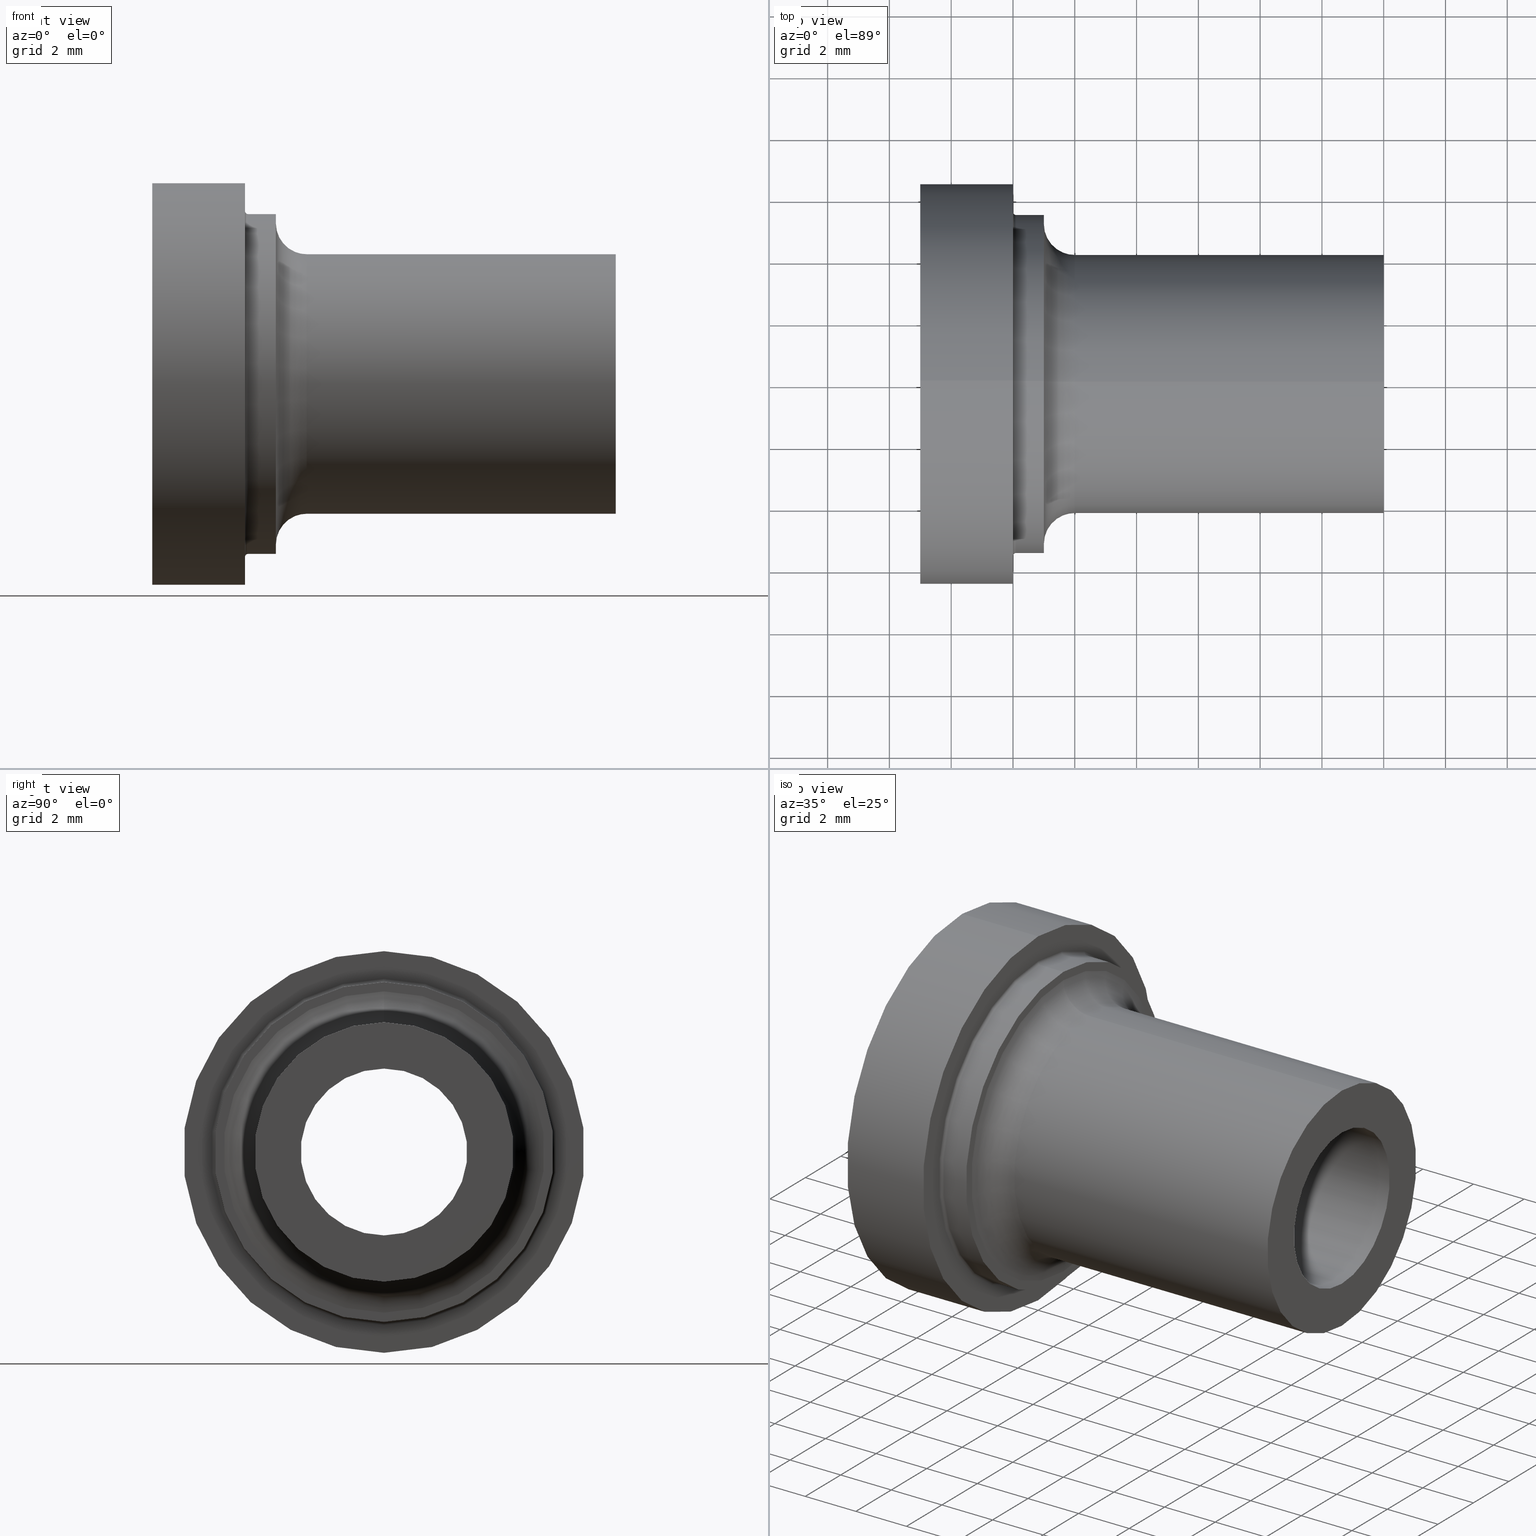
[diagram: canonical four-view strip — front | top / right | iso, engineering-drawing reading convention]
A machine part, canonical four-view strip (front | top / right | iso — engineering-drawing reading convention). The complete STEP part file that produces these views, byte-faithful:
ISO-10303-21;
HEADER;
FILE_DESCRIPTION( ( 'Unknown' ), '1' );
FILE_NAME( 'C:/Users/bkuehnle/Desktop/391620500-D.stp', 'Unknown', ( 'Unknown' ), ( 'Unknown' ), 'PSStep 15.0.49', 'Unknown', '  ' );
FILE_SCHEMA( ( 'AUTOMOTIVE_DESIGN { 1 0 10303 214 1 1 1 1 }' ) );
ENDSEC;
DATA;
#1 = MECHANICAL_DESIGN_GEOMETRIC_PRESENTATION_REPRESENTATION( ' ', ( #10, #11, #12, #13, #14, #15, #16, #17, #18, #19, #20, #21, #22 ), #6 );
#2 = PRODUCT_DEFINITION_CONTEXT( '', #23, 'design' );
#3 = APPLICATION_PROTOCOL_DEFINITION( 'international standard', 'automotive_design', 2001, #23 );
#4 = PRODUCT_CATEGORY_RELATIONSHIP( 'NONE', 'NONE', #24, #25 );
#5 = SHAPE_DEFINITION_REPRESENTATION( #26, #27 );
#6 =  ( GEOMETRIC_REPRESENTATION_CONTEXT( 3 )GLOBAL_UNCERTAINTY_ASSIGNED_CONTEXT( ( #30 ) )GLOBAL_UNIT_ASSIGNED_CONTEXT( ( #32, #33, #34 ) )REPRESENTATION_CONTEXT( 'NONE', 'WORKSPACE' ) );
#10 = STYLED_ITEM( '', ( #36 ), #37 );
#11 = STYLED_ITEM( '', ( #38 ), #39 );
#12 = STYLED_ITEM( '', ( #40 ), #41 );
#13 = STYLED_ITEM( '', ( #42 ), #43 );
#14 = STYLED_ITEM( '', ( #44 ), #45 );
#15 = STYLED_ITEM( '', ( #46 ), #47 );
#16 = STYLED_ITEM( '', ( #48 ), #49 );
#17 = STYLED_ITEM( '', ( #50 ), #51 );
#18 = STYLED_ITEM( '', ( #52 ), #53 );
#19 = STYLED_ITEM( '', ( #54 ), #55 );
#20 = STYLED_ITEM( '', ( #56 ), #57 );
#21 = STYLED_ITEM( '', ( #58 ), #59 );
#22 = STYLED_ITEM( '', ( #60 ), #61 );
#23 = APPLICATION_CONTEXT( 'core data for automotive mechanical design processes' );
#24 = PRODUCT_CATEGORY( 'part', 'NONE' );
#25 = PRODUCT_RELATED_PRODUCT_CATEGORY( 'detail', ' ', ( #62 ) );
#26 = PRODUCT_DEFINITION_SHAPE( 'NONE', 'NONE', #63 );
#27 = ADVANCED_BREP_SHAPE_REPRESENTATION( '1', ( #64, #65 ), #6 );
#30 = UNCERTAINTY_MEASURE_WITH_UNIT( LENGTH_MEASURE( 0.00100000000000000 ), #32, '', '' );
#32 =  ( CONVERSION_BASED_UNIT( 'MILLIMETRE', #68 )LENGTH_UNIT(  )NAMED_UNIT( #71 ) );
#33 =  ( NAMED_UNIT( #73 )PLANE_ANGLE_UNIT(  )SI_UNIT( $, .RADIAN. ) );
#34 =  ( NAMED_UNIT( #73 )SI_UNIT( $, .STERADIAN. )SOLID_ANGLE_UNIT(  ) );
#36 = PRESENTATION_STYLE_ASSIGNMENT( ( #79 ) );
#37 = ADVANCED_FACE( '', ( #80, #81 ), #82, .F. );
#38 = PRESENTATION_STYLE_ASSIGNMENT( ( #83 ) );
#39 = ADVANCED_FACE( '', ( #84, #85 ), #86, .T. );
#40 = PRESENTATION_STYLE_ASSIGNMENT( ( #87 ) );
#41 = ADVANCED_FACE( '', ( #88, #89 ), #90, .T. );
#42 = PRESENTATION_STYLE_ASSIGNMENT( ( #91 ) );
#43 = ADVANCED_FACE( '', ( #92, #93 ), #94, .T. );
#44 = PRESENTATION_STYLE_ASSIGNMENT( ( #95 ) );
#45 = ADVANCED_FACE( '', ( #96, #97 ), #98, .F. );
#46 = PRESENTATION_STYLE_ASSIGNMENT( ( #99 ) );
#47 = ADVANCED_FACE( '', ( #100, #101 ), #102, .F. );
#48 = PRESENTATION_STYLE_ASSIGNMENT( ( #103 ) );
#49 = ADVANCED_FACE( '', ( #104, #105 ), #106, .F. );
#50 = PRESENTATION_STYLE_ASSIGNMENT( ( #107 ) );
#51 = ADVANCED_FACE( '', ( #108, #109 ), #110, .F. );
#52 = PRESENTATION_STYLE_ASSIGNMENT( ( #111 ) );
#53 = ADVANCED_FACE( '', ( #112, #113 ), #114, .F. );
#54 = PRESENTATION_STYLE_ASSIGNMENT( ( #115 ) );
#55 = ADVANCED_FACE( '', ( #116, #117 ), #118, .T. );
#56 = PRESENTATION_STYLE_ASSIGNMENT( ( #119 ) );
#57 = ADVANCED_FACE( '', ( #120, #121 ), #122, .F. );
#58 = PRESENTATION_STYLE_ASSIGNMENT( ( #123 ) );
#59 = ADVANCED_FACE( '', ( #124, #125 ), #126, .T. );
#60 = PRESENTATION_STYLE_ASSIGNMENT( ( #127 ) );
#61 = ADVANCED_FACE( '', ( #128, #129 ), #130, .F. );
#62 = PRODUCT( '1', '1', 'PART-1-DESC', ( #131 ) );
#63 = PRODUCT_DEFINITION( 'NONE', 'NONE', #132, #2 );
#64 = MANIFOLD_SOLID_BREP( '1', #133 );
#65 = AXIS2_PLACEMENT_3D( '', #134, #135, #136 );
#68 = LENGTH_MEASURE_WITH_UNIT( LENGTH_MEASURE( 1.00000000000000 ), #137 );
#71 = DIMENSIONAL_EXPONENTS( 1.00000000000000, 0.000000000000000, 0.000000000000000, 0.000000000000000, 0.000000000000000, 0.000000000000000, 0.000000000000000 );
#73 = DIMENSIONAL_EXPONENTS( 0.000000000000000, 0.000000000000000, 0.000000000000000, 0.000000000000000, 0.000000000000000, 0.000000000000000, 0.000000000000000 );
#79 = SURFACE_STYLE_USAGE( .BOTH., #138 );
#80 = FACE_BOUND( '', #139, .T. );
#81 = FACE_OUTER_BOUND( '', #140, .T. );
#82 = PLANE( '', #141 );
#83 = SURFACE_STYLE_USAGE( .BOTH., #142 );
#84 = FACE_OUTER_BOUND( '', #143, .T. );
#85 = FACE_OUTER_BOUND( '', #144, .T. );
#86 = CYLINDRICAL_SURFACE( '', #145, 5.50000000000000 );
#87 = SURFACE_STYLE_USAGE( .BOTH., #146 );
#88 = FACE_OUTER_BOUND( '', #147, .T. );
#89 = FACE_OUTER_BOUND( '', #148, .T. );
#90 = TOROIDAL_SURFACE( '', #149, 5.20000000000000, 1.00000000000000 );
#91 = SURFACE_STYLE_USAGE( .BOTH., #150 );
#92 = FACE_OUTER_BOUND( '', #151, .T. );
#93 = FACE_OUTER_BOUND( '', #152, .T. );
#94 = CYLINDRICAL_SURFACE( '', #153, 6.50000000000000 );
#95 = SURFACE_STYLE_USAGE( .BOTH., #154 );
#96 = FACE_BOUND( '', #155, .T. );
#97 = FACE_OUTER_BOUND( '', #156, .T. );
#98 = PLANE( '', #157 );
#99 = SURFACE_STYLE_USAGE( .BOTH., #158 );
#100 = FACE_OUTER_BOUND( '', #159, .T. );
#101 = FACE_BOUND( '', #160, .T. );
#102 = PLANE( '', #161 );
#103 = SURFACE_STYLE_USAGE( .BOTH., #162 );
#104 = FACE_OUTER_BOUND( '', #163, .T. );
#105 = FACE_BOUND( '', #164, .T. );
#106 = CONICAL_SURFACE( '', #165, 3.11760748794732, 0.264591631106884 );
#107 = SURFACE_STYLE_USAGE( .BOTH., #166 );
#108 = FACE_OUTER_BOUND( '', #167, .T. );
#109 = FACE_OUTER_BOUND( '', #168, .T. );
#110 = CYLINDRICAL_SURFACE( '', #169, 2.70000000000000 );
#111 = SURFACE_STYLE_USAGE( .BOTH., #170 );
#112 = FACE_OUTER_BOUND( '', #171, .T. );
#113 = FACE_OUTER_BOUND( '', #172, .T. );
#114 = TOROIDAL_SURFACE( '', #173, 5.60000000000000, 0.100000000000000 );
#115 = SURFACE_STYLE_USAGE( .BOTH., #174 );
#116 = FACE_OUTER_BOUND( '', #175, .T. );
#117 = FACE_OUTER_BOUND( '', #176, .T. );
#118 = CYLINDRICAL_SURFACE( '', #177, 4.20000000000000 );
#119 = SURFACE_STYLE_USAGE( .BOTH., #178 );
#120 = FACE_OUTER_BOUND( '', #179, .T. );
#121 = FACE_OUTER_BOUND( '', #180, .T. );
#122 = TOROIDAL_SURFACE( '', #181, 5.20000000000000, 1.00000000000000 );
#123 = SURFACE_STYLE_USAGE( .BOTH., #182 );
#124 = FACE_OUTER_BOUND( '', #183, .T. );
#125 = FACE_OUTER_BOUND( '', #184, .T. );
#126 = TOROIDAL_SURFACE( '', #185, 14.7000000000000, 12.0000000000000 );
#127 = SURFACE_STYLE_USAGE( .BOTH., #186 );
#128 = FACE_OUTER_BOUND( '', #187, .T. );
#129 = FACE_BOUND( '', #188, .T. );
#130 = PLANE( '', #189 );
#131 = PRODUCT_CONTEXT( '', #23, 'mechanical' );
#132 = PRODUCT_DEFINITION_FORMATION_WITH_SPECIFIED_SOURCE( ' ', 'NONE', #62, .NOT_KNOWN. );
#133 = CLOSED_SHELL( '', ( #45, #51, #39, #37, #61, #55, #53, #57, #47, #41, #49, #59, #43 ) );
#134 = CARTESIAN_POINT( '', ( 0.000000000000000, 0.000000000000000, 0.000000000000000 ) );
#135 = DIRECTION( '', ( 0.000000000000000, 0.000000000000000, 1.00000000000000 ) );
#136 = DIRECTION( '', ( 1.00000000000000, 0.000000000000000, 0.000000000000000 ) );
#137 =  ( LENGTH_UNIT(  )NAMED_UNIT( #71 )SI_UNIT( .MILLI., .METRE. ) );
#138 = SURFACE_SIDE_STYLE( '', ( #191 ) );
#139 = EDGE_LOOP( '', ( #192 ) );
#140 = EDGE_LOOP( '', ( #193 ) );
#141 = AXIS2_PLACEMENT_3D( '', #194, #195, #196 );
#142 = SURFACE_SIDE_STYLE( '', ( #197 ) );
#143 = EDGE_LOOP( '', ( #198 ) );
#144 = EDGE_LOOP( '', ( #199 ) );
#145 = AXIS2_PLACEMENT_3D( '', #200, #201, #202 );
#146 = SURFACE_SIDE_STYLE( '', ( #203 ) );
#147 = EDGE_LOOP( '', ( #204 ) );
#148 = EDGE_LOOP( '', ( #205 ) );
#149 = AXIS2_PLACEMENT_3D( '', #206, #207, #208 );
#150 = SURFACE_SIDE_STYLE( '', ( #209 ) );
#151 = EDGE_LOOP( '', ( #210 ) );
#152 = EDGE_LOOP( '', ( #211 ) );
#153 = AXIS2_PLACEMENT_3D( '', #212, #213, #214 );
#154 = SURFACE_SIDE_STYLE( '', ( #215 ) );
#155 = EDGE_LOOP( '', ( #216 ) );
#156 = EDGE_LOOP( '', ( #217 ) );
#157 = AXIS2_PLACEMENT_3D( '', #218, #219, #220 );
#158 = SURFACE_SIDE_STYLE( '', ( #221 ) );
#159 = EDGE_LOOP( '', ( #222 ) );
#160 = EDGE_LOOP( '', ( #223 ) );
#161 = AXIS2_PLACEMENT_3D( '', #224, #225, #226 );
#162 = SURFACE_SIDE_STYLE( '', ( #227 ) );
#163 = EDGE_LOOP( '', ( #228 ) );
#164 = EDGE_LOOP( '', ( #229 ) );
#165 = AXIS2_PLACEMENT_3D( '', #230, #231, #232 );
#166 = SURFACE_SIDE_STYLE( '', ( #233 ) );
#167 = EDGE_LOOP( '', ( #234 ) );
#168 = EDGE_LOOP( '', ( #235 ) );
#169 = AXIS2_PLACEMENT_3D( '', #236, #237, #238 );
#170 = SURFACE_SIDE_STYLE( '', ( #239 ) );
#171 = EDGE_LOOP( '', ( #240 ) );
#172 = EDGE_LOOP( '', ( #241 ) );
#173 = AXIS2_PLACEMENT_3D( '', #242, #243, #244 );
#174 = SURFACE_SIDE_STYLE( '', ( #245 ) );
#175 = EDGE_LOOP( '', ( #246 ) );
#176 = EDGE_LOOP( '', ( #247 ) );
#177 = AXIS2_PLACEMENT_3D( '', #248, #249, #250 );
#178 = SURFACE_SIDE_STYLE( '', ( #251 ) );
#179 = EDGE_LOOP( '', ( #252 ) );
#180 = EDGE_LOOP( '', ( #253 ) );
#181 = AXIS2_PLACEMENT_3D( '', #254, #255, #256 );
#182 = SURFACE_SIDE_STYLE( '', ( #257 ) );
#183 = EDGE_LOOP( '', ( #258 ) );
#184 = EDGE_LOOP( '', ( #259 ) );
#185 = AXIS2_PLACEMENT_3D( '', #260, #261, #262 );
#186 = SURFACE_SIDE_STYLE( '', ( #263 ) );
#187 = EDGE_LOOP( '', ( #264 ) );
#188 = EDGE_LOOP( '', ( #265 ) );
#189 = AXIS2_PLACEMENT_3D( '', #266, #267, #268 );
#191 = SURFACE_STYLE_FILL_AREA( #269 );
#192 = ORIENTED_EDGE( '', *, *, #270, .T. );
#193 = ORIENTED_EDGE( '', *, *, #271, .F. );
#194 = CARTESIAN_POINT( '', ( 0.000000000000000, 0.000000000000000, 0.000000000000000 ) );
#195 = DIRECTION( '', ( -1.00000000000000, 0.000000000000000, 0.000000000000000 ) );
#196 = DIRECTION( '', ( 0.000000000000000, 0.000000000000000, 1.00000000000000 ) );
#197 = SURFACE_STYLE_FILL_AREA( #272 );
#198 = ORIENTED_EDGE( '', *, *, #273, .T. );
#199 = ORIENTED_EDGE( '', *, *, #274, .T. );
#200 = CARTESIAN_POINT( '', ( -15.0000000000000, 0.000000000000000, 0.000000000000000 ) );
#201 = DIRECTION( '', ( 1.00000000000000, -0.000000000000000, -0.000000000000000 ) );
#202 = DIRECTION( '', ( 0.000000000000000, 0.000000000000000, 1.00000000000000 ) );
#203 = SURFACE_STYLE_FILL_AREA( #275 );
#204 = ORIENTED_EDGE( '', *, *, #276, .T. );
#205 = ORIENTED_EDGE( '', *, *, #277, .F. );
#206 = CARTESIAN_POINT( '', ( -14.0000000000000, 0.000000000000000, 0.000000000000000 ) );
#207 = DIRECTION( '', ( -1.00000000000000, 0.000000000000000, 0.000000000000000 ) );
#208 = DIRECTION( '', ( 0.000000000000000, 0.000000000000000, 1.00000000000000 ) );
#209 = SURFACE_STYLE_FILL_AREA( #278 );
#210 = ORIENTED_EDGE( '', *, *, #279, .T. );
#211 = ORIENTED_EDGE( '', *, *, #280, .F. );
#212 = CARTESIAN_POINT( '', ( -60.0000000000000, 0.000000000000000, 0.000000000000000 ) );
#213 = DIRECTION( '', ( 1.00000000000000, -0.000000000000000, -0.000000000000000 ) );
#214 = DIRECTION( '', ( 0.000000000000000, 0.000000000000000, 1.00000000000000 ) );
#215 = SURFACE_STYLE_FILL_AREA( #281 );
#216 = ORIENTED_EDGE( '', *, *, #282, .T. );
#217 = ORIENTED_EDGE( '', *, *, #279, .F. );
#218 = CARTESIAN_POINT( '', ( -12.0000000000000, 0.000000000000000, 5.50000000000000 ) );
#219 = DIRECTION( '', ( -1.00000000000000, 0.000000000000000, 0.000000000000000 ) );
#220 = DIRECTION( '', ( 0.000000000000000, 0.000000000000000, 1.00000000000000 ) );
#221 = SURFACE_STYLE_FILL_AREA( #283 );
#222 = ORIENTED_EDGE( '', *, *, #274, .F. );
#223 = ORIENTED_EDGE( '', *, *, #284, .T. );
#224 = CARTESIAN_POINT( '', ( -11.0000000000000, 0.000000000000000, 5.20000000000000 ) );
#225 = DIRECTION( '', ( -1.00000000000000, 0.000000000000000, 0.000000000000000 ) );
#226 = DIRECTION( '', ( 0.000000000000000, 0.000000000000000, 1.00000000000000 ) );
#227 = SURFACE_STYLE_FILL_AREA( #285 );
#228 = ORIENTED_EDGE( '', *, *, #277, .T. );
#229 = ORIENTED_EDGE( '', *, *, #286, .F. );
#230 = CARTESIAN_POINT( '', ( -10.1381815907856, 0.000000000000000, 0.000000000000000 ) );
#231 = DIRECTION( '', ( -1.00000000000000, 0.000000000000000, -0.000000000000000 ) );
#232 = DIRECTION( '', ( 0.000000000000000, 0.000000000000000, 1.00000000000000 ) );
#233 = SURFACE_STYLE_FILL_AREA( #287 );
#234 = ORIENTED_EDGE( '', *, *, #270, .F. );
#235 = ORIENTED_EDGE( '', *, *, #288, .T. );
#236 = CARTESIAN_POINT( '', ( 8.72762103540935, 0.000000000000000, 3.67273485929464E-015 ) );
#237 = DIRECTION( '', ( 1.00000000000000, -0.000000000000000, -0.000000000000000 ) );
#238 = DIRECTION( '', ( 0.000000000000000, 0.000000000000000, 1.00000000000000 ) );
#239 = SURFACE_STYLE_FILL_AREA( #289 );
#240 = ORIENTED_EDGE( '', *, *, #273, .F. );
#241 = ORIENTED_EDGE( '', *, *, #282, .F. );
#242 = CARTESIAN_POINT( '', ( -11.9000000000000, 0.000000000000000, 0.000000000000000 ) );
#243 = DIRECTION( '', ( -1.00000000000000, 0.000000000000000, 0.000000000000000 ) );
#244 = DIRECTION( '', ( 0.000000000000000, 0.000000000000000, 1.00000000000000 ) );
#245 = SURFACE_STYLE_FILL_AREA( #290 );
#246 = ORIENTED_EDGE( '', *, *, #291, .F. );
#247 = ORIENTED_EDGE( '', *, *, #271, .T. );
#248 = CARTESIAN_POINT( '', ( -60.0000000000000, 0.000000000000000, 0.000000000000000 ) );
#249 = DIRECTION( '', ( 1.00000000000000, -0.000000000000000, -0.000000000000000 ) );
#250 = DIRECTION( '', ( 0.000000000000000, 0.000000000000000, 1.00000000000000 ) );
#251 = SURFACE_STYLE_FILL_AREA( #292 );
#252 = ORIENTED_EDGE( '', *, *, #284, .F. );
#253 = ORIENTED_EDGE( '', *, *, #291, .T. );
#254 = CARTESIAN_POINT( '', ( -10.0000000000000, 0.000000000000000, 0.000000000000000 ) );
#255 = DIRECTION( '', ( -1.00000000000000, 0.000000000000000, 0.000000000000000 ) );
#256 = DIRECTION( '', ( 0.000000000000000, 0.000000000000000, 1.00000000000000 ) );
#257 = SURFACE_STYLE_FILL_AREA( #293 );
#258 = ORIENTED_EDGE( '', *, *, #286, .T. );
#259 = ORIENTED_EDGE( '', *, *, #288, .F. );
#260 = CARTESIAN_POINT( '', ( -7.00000000000000, 0.000000000000000, 0.000000000000000 ) );
#261 = DIRECTION( '', ( -1.00000000000000, 0.000000000000000, 0.000000000000000 ) );
#262 = DIRECTION( '', ( 0.000000000000000, 0.000000000000000, 1.00000000000000 ) );
#263 = SURFACE_STYLE_FILL_AREA( #294 );
#264 = ORIENTED_EDGE( '', *, *, #280, .T. );
#265 = ORIENTED_EDGE( '', *, *, #276, .F. );
#266 = CARTESIAN_POINT( '', ( -15.0000000000000, 0.000000000000000, 6.23550952893730 ) );
#267 = DIRECTION( '', ( 1.00000000000000, 0.000000000000000, 0.000000000000000 ) );
#268 = DIRECTION( '', ( 0.000000000000000, 0.000000000000000, -1.00000000000000 ) );
#269 = FILL_AREA_STYLE( '', ( #295 ) );
#270 = EDGE_CURVE( '', #296, #296, #297, .T. );
#271 = EDGE_CURVE( '', #298, #298, #299, .T. );
#272 = FILL_AREA_STYLE( '', ( #300 ) );
#273 = EDGE_CURVE( '', #301, #301, #302, .F. );
#274 = EDGE_CURVE( '', #303, #303, #304, .T. );
#275 = FILL_AREA_STYLE( '', ( #305 ) );
#276 = EDGE_CURVE( '', #306, #306, #307, .T. );
#277 = EDGE_CURVE( '', #308, #308, #309, .T. );
#278 = FILL_AREA_STYLE( '', ( #310 ) );
#279 = EDGE_CURVE( '', #311, #311, #312, .T. );
#280 = EDGE_CURVE( '', #313, #313, #314, .T. );
#281 = FILL_AREA_STYLE( '', ( #315 ) );
#282 = EDGE_CURVE( '', #316, #316, #317, .T. );
#283 = FILL_AREA_STYLE( '', ( #318 ) );
#284 = EDGE_CURVE( '', #319, #319, #320, .T. );
#285 = FILL_AREA_STYLE( '', ( #321 ) );
#286 = EDGE_CURVE( '', #322, #322, #323, .T. );
#287 = FILL_AREA_STYLE( '', ( #324 ) );
#288 = EDGE_CURVE( '', #325, #325, #326, .T. );
#289 = FILL_AREA_STYLE( '', ( #327 ) );
#290 = FILL_AREA_STYLE( '', ( #328 ) );
#291 = EDGE_CURVE( '', #329, #329, #330, .T. );
#292 = FILL_AREA_STYLE( '', ( #331 ) );
#293 = FILL_AREA_STYLE( '', ( #332 ) );
#294 = FILL_AREA_STYLE( '', ( #333 ) );
#295 = FILL_AREA_STYLE_COLOUR( '', #334 );
#296 = VERTEX_POINT( '', #335 );
#297 = CIRCLE( '', #336, 2.70000000000000 );
#298 = VERTEX_POINT( '', #337 );
#299 = CIRCLE( '', #338, 4.20000000000000 );
#300 = FILL_AREA_STYLE_COLOUR( '', #339 );
#301 = VERTEX_POINT( '', #340 );
#302 = CIRCLE( '', #341, 5.50000000000000 );
#303 = VERTEX_POINT( '', #342 );
#304 = CIRCLE( '', #343, 5.50000000000000 );
#305 = FILL_AREA_STYLE_COLOUR( '', #344 );
#306 = VERTEX_POINT( '', #345 );
#307 = CIRCLE( '', #346, 5.20000000000000 );
#308 = VERTEX_POINT( '', #347 );
#309 = CIRCLE( '', #348, 4.23480062399561 );
#310 = FILL_AREA_STYLE_COLOUR( '', #349 );
#311 = VERTEX_POINT( '', #350 );
#312 = CIRCLE( '', #351, 6.50000000000000 );
#313 = VERTEX_POINT( '', #352 );
#314 = CIRCLE( '', #353, 6.50000000000000 );
#315 = FILL_AREA_STYLE_COLOUR( '', #354 );
#316 = VERTEX_POINT( '', #355 );
#317 = CIRCLE( '', #356, 5.60000000000000 );
#318 = FILL_AREA_STYLE_COLOUR( '', #357 );
#319 = VERTEX_POINT( '', #358 );
#320 = CIRCLE( '', #359, 5.20000000000000 );
#321 = FILL_AREA_STYLE_COLOUR( '', #360 );
#322 = VERTEX_POINT( '', #361 );
#323 = CIRCLE( '', #362, 3.11760748794732 );
#324 = FILL_AREA_STYLE_COLOUR( '', #363 );
#325 = VERTEX_POINT( '', #364 );
#326 = CIRCLE( '', #365, 2.70000000000000 );
#327 = FILL_AREA_STYLE_COLOUR( '', #366 );
#328 = FILL_AREA_STYLE_COLOUR( '', #367 );
#329 = VERTEX_POINT( '', #368 );
#330 = CIRCLE( '', #369, 4.20000000000000 );
#331 = FILL_AREA_STYLE_COLOUR( '', #370 );
#332 = FILL_AREA_STYLE_COLOUR( '', #371 );
#333 = FILL_AREA_STYLE_COLOUR( '', #372 );
#334 = COLOUR_RGB( '', 0.800000011920929, 0.666666686534882, 0.533333361148834 );
#335 = CARTESIAN_POINT( '', ( 0.000000000000000, 0.000000000000000, 2.70000000000000 ) );
#336 = AXIS2_PLACEMENT_3D( '', #373, #374, #375 );
#337 = CARTESIAN_POINT( '', ( 0.000000000000000, 0.000000000000000, 4.20000000000000 ) );
#338 = AXIS2_PLACEMENT_3D( '', #376, #377, #378 );
#339 = COLOUR_RGB( '', 0.800000011920929, 0.666666686534882, 0.533333361148834 );
#340 = CARTESIAN_POINT( '', ( -11.9000000000000, 0.000000000000000, 5.50000000000000 ) );
#341 = AXIS2_PLACEMENT_3D( '', #379, #380, #381 );
#342 = CARTESIAN_POINT( '', ( -11.0000000000000, 0.000000000000000, 5.50000000000000 ) );
#343 = AXIS2_PLACEMENT_3D( '', #382, #383, #384 );
#344 = COLOUR_RGB( '', 0.800000011920929, 0.666666686534882, 0.533333361148834 );
#345 = CARTESIAN_POINT( '', ( -15.0000000000000, 0.000000000000000, 5.20000000000000 ) );
#346 = AXIS2_PLACEMENT_3D( '', #385, #386, #387 );
#347 = CARTESIAN_POINT( '', ( -14.2615151325655, 0.000000000000000, 4.23480062399561 ) );
#348 = AXIS2_PLACEMENT_3D( '', #388, #389, #390 );
#349 = COLOUR_RGB( '', 0.800000011920929, 0.666666686534882, 0.533333361148834 );
#350 = CARTESIAN_POINT( '', ( -12.0000000000000, 0.000000000000000, 6.50000000000000 ) );
#351 = AXIS2_PLACEMENT_3D( '', #391, #392, #393 );
#352 = CARTESIAN_POINT( '', ( -15.0000000000000, 0.000000000000000, 6.50000000000000 ) );
#353 = AXIS2_PLACEMENT_3D( '', #394, #395, #396 );
#354 = COLOUR_RGB( '', 0.800000011920929, 0.666666686534882, 0.533333361148834 );
#355 = CARTESIAN_POINT( '', ( -12.0000000000000, 0.000000000000000, 5.60000000000000 ) );
#356 = AXIS2_PLACEMENT_3D( '', #397, #398, #399 );
#357 = COLOUR_RGB( '', 0.800000011920929, 0.666666686534882, 0.533333361148834 );
#358 = CARTESIAN_POINT( '', ( -11.0000000000000, 0.000000000000000, 5.20000000000000 ) );
#359 = AXIS2_PLACEMENT_3D( '', #400, #401, #402 );
#360 = COLOUR_RGB( '', 0.800000011920929, 0.666666686534882, 0.533333361148834 );
#361 = CARTESIAN_POINT( '', ( -10.1381815907856, 0.000000000000000, 3.11760748794732 ) );
#362 = AXIS2_PLACEMENT_3D( '', #403, #404, #405 );
#363 = COLOUR_RGB( '', 0.800000011920929, 0.666666686534882, 0.533333361148834 );
#364 = CARTESIAN_POINT( '', ( -7.00000000000000, 0.000000000000000, 2.70000000000000 ) );
#365 = AXIS2_PLACEMENT_3D( '', #406, #407, #408 );
#366 = COLOUR_RGB( '', 0.800000011920929, 0.666666686534882, 0.533333361148834 );
#367 = COLOUR_RGB( '', 0.800000011920929, 0.666666686534882, 0.533333361148834 );
#368 = CARTESIAN_POINT( '', ( -10.0000000000000, 0.000000000000000, 4.20000000000000 ) );
#369 = AXIS2_PLACEMENT_3D( '', #409, #410, #411 );
#370 = COLOUR_RGB( '', 0.800000011920929, 0.666666686534882, 0.533333361148834 );
#371 = COLOUR_RGB( '', 0.800000011920929, 0.666666686534882, 0.533333361148834 );
#372 = COLOUR_RGB( '', 0.800000011920929, 0.666666686534882, 0.533333361148834 );
#373 = CARTESIAN_POINT( '', ( 0.000000000000000, 0.000000000000000, 3.67273485929464E-015 ) );
#374 = DIRECTION( '', ( -1.00000000000000, 0.000000000000000, 0.000000000000000 ) );
#375 = DIRECTION( '', ( 0.000000000000000, 0.000000000000000, 1.00000000000000 ) );
#376 = CARTESIAN_POINT( '', ( 0.000000000000000, 0.000000000000000, 0.000000000000000 ) );
#377 = DIRECTION( '', ( -1.00000000000000, 0.000000000000000, 0.000000000000000 ) );
#378 = DIRECTION( '', ( 0.000000000000000, 0.000000000000000, 1.00000000000000 ) );
#379 = CARTESIAN_POINT( '', ( -11.9000000000000, 0.000000000000000, 0.000000000000000 ) );
#380 = DIRECTION( '', ( -1.00000000000000, 0.000000000000000, 0.000000000000000 ) );
#381 = DIRECTION( '', ( 0.000000000000000, 0.000000000000000, 1.00000000000000 ) );
#382 = CARTESIAN_POINT( '', ( -11.0000000000000, 0.000000000000000, 0.000000000000000 ) );
#383 = DIRECTION( '', ( -1.00000000000000, 0.000000000000000, 0.000000000000000 ) );
#384 = DIRECTION( '', ( 0.000000000000000, 0.000000000000000, 1.00000000000000 ) );
#385 = CARTESIAN_POINT( '', ( -15.0000000000000, 0.000000000000000, 0.000000000000000 ) );
#386 = DIRECTION( '', ( -1.00000000000000, 0.000000000000000, 0.000000000000000 ) );
#387 = DIRECTION( '', ( 0.000000000000000, 0.000000000000000, 1.00000000000000 ) );
#388 = CARTESIAN_POINT( '', ( -14.2615151325655, 0.000000000000000, 0.000000000000000 ) );
#389 = DIRECTION( '', ( -1.00000000000000, 0.000000000000000, 0.000000000000000 ) );
#390 = DIRECTION( '', ( 0.000000000000000, 0.000000000000000, 1.00000000000000 ) );
#391 = CARTESIAN_POINT( '', ( -12.0000000000000, 0.000000000000000, 0.000000000000000 ) );
#392 = DIRECTION( '', ( -1.00000000000000, 0.000000000000000, 0.000000000000000 ) );
#393 = DIRECTION( '', ( 0.000000000000000, 0.000000000000000, 1.00000000000000 ) );
#394 = CARTESIAN_POINT( '', ( -15.0000000000000, 0.000000000000000, 0.000000000000000 ) );
#395 = DIRECTION( '', ( -1.00000000000000, 0.000000000000000, 0.000000000000000 ) );
#396 = DIRECTION( '', ( 0.000000000000000, 0.000000000000000, 1.00000000000000 ) );
#397 = CARTESIAN_POINT( '', ( -12.0000000000000, 0.000000000000000, 0.000000000000000 ) );
#398 = DIRECTION( '', ( -1.00000000000000, 0.000000000000000, 0.000000000000000 ) );
#399 = DIRECTION( '', ( 0.000000000000000, 0.000000000000000, 1.00000000000000 ) );
#400 = CARTESIAN_POINT( '', ( -11.0000000000000, 0.000000000000000, 0.000000000000000 ) );
#401 = DIRECTION( '', ( -1.00000000000000, 0.000000000000000, 0.000000000000000 ) );
#402 = DIRECTION( '', ( 0.000000000000000, 0.000000000000000, 1.00000000000000 ) );
#403 = CARTESIAN_POINT( '', ( -10.1381815907856, 0.000000000000000, 0.000000000000000 ) );
#404 = DIRECTION( '', ( -1.00000000000000, 0.000000000000000, 0.000000000000000 ) );
#405 = DIRECTION( '', ( 0.000000000000000, 0.000000000000000, 1.00000000000000 ) );
#406 = CARTESIAN_POINT( '', ( -7.00000000000000, 0.000000000000000, 0.000000000000000 ) );
#407 = DIRECTION( '', ( -1.00000000000000, 0.000000000000000, 0.000000000000000 ) );
#408 = DIRECTION( '', ( 0.000000000000000, 0.000000000000000, 1.00000000000000 ) );
#409 = CARTESIAN_POINT( '', ( -10.0000000000000, 0.000000000000000, 0.000000000000000 ) );
#410 = DIRECTION( '', ( -1.00000000000000, 0.000000000000000, 0.000000000000000 ) );
#411 = DIRECTION( '', ( 0.000000000000000, 0.000000000000000, 1.00000000000000 ) );
ENDSEC;
END-ISO-10303-21;
